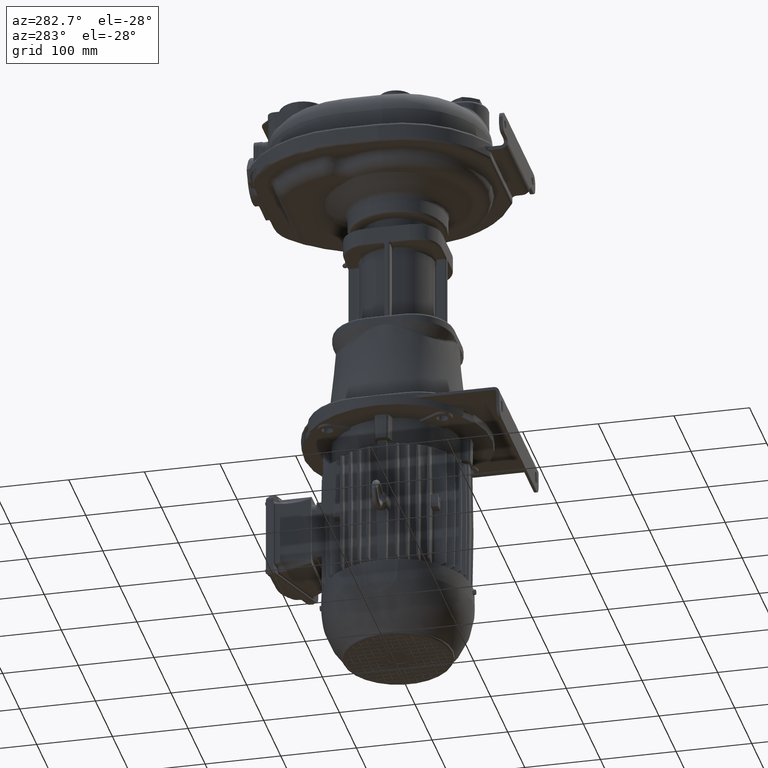
[diagram: clean part render]
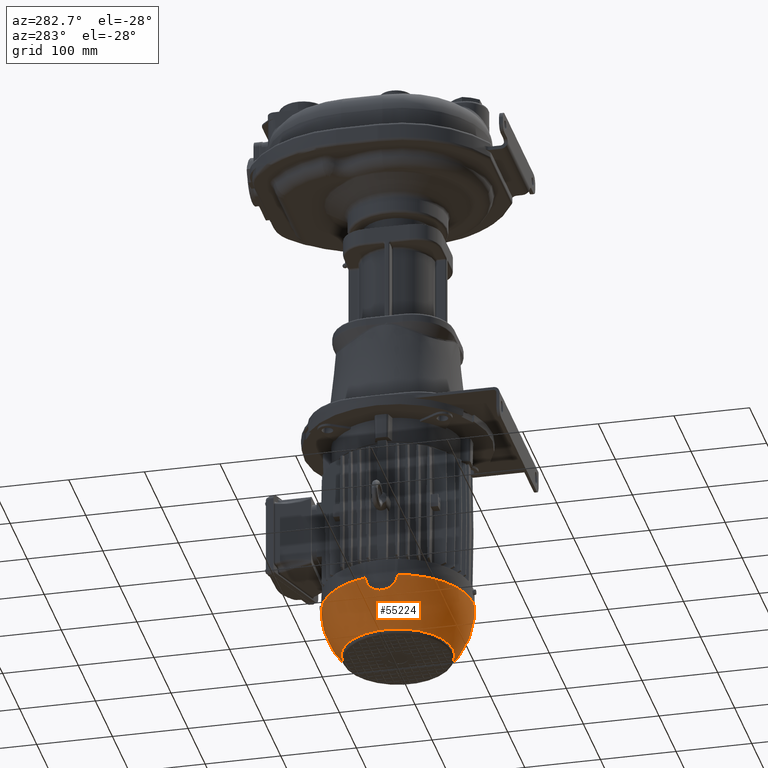
[diagram: same view with one face highlighted and labeled with its STEP entity id]
A machine part, auxiliary view. The second image highlights one B-rep face of the part: STEP entity #55224.
In plain terms, the highlighted spherical surface has radius 99.0542 mm.
Its self-contained STEP definition (entity closure, byte-faithful):
#2331=CARTESIAN_POINT('',(9.905046540133E1,1.696256305917E-11,
-6.294644003162E2));
#2332=CARTESIAN_POINT('',(9.905046540130E1,-6.306420004001E-1,
-6.294644003191E2));
#2333=CARTESIAN_POINT('',(9.903841937733E1,-1.891925999810E0,
-6.294644003232E2));
#2334=CARTESIAN_POINT('',(9.898421886221E1,-3.783161774997E0,
-6.294644003110E2));
#2335=CARTESIAN_POINT('',(9.889390664017E1,-5.673017382408E0,
-6.294644003212E2));
#2336=CARTESIAN_POINT('',(9.876751565950E1,-7.560803345271E0,
-6.294644003186E2));
#2337=CARTESIAN_POINT('',(9.860509203085E1,-9.445830951163E0,
-6.294644003228E2));
#2338=CARTESIAN_POINT('',(9.840669500960E1,-1.132741250479E1,
-6.294644003249E2));
#2339=CARTESIAN_POINT('',(9.817239697601E1,-1.320486155731E1,
-6.294644003277E2));
#2340=CARTESIAN_POINT('',(9.790228340663E1,-1.507749317772E1,
-6.294644003294E2));
#2341=CARTESIAN_POINT('',(9.759645284658E1,-1.694462417757E1,
-6.294644003302E2));
#2342=CARTESIAN_POINT('',(9.725501686801E1,-1.880557339628E1,
-6.294644003303E2));
#2343=CARTESIAN_POINT('',(9.687810003540E1,-2.065966191125E1,
-6.294644003302E2));
#2344=CARTESIAN_POINT('',(9.646583985694E1,-2.250621330770E1,
-6.294644003298E2));
#2345=CARTESIAN_POINT('',(9.601838673406E1,-2.434455392376E1,
-6.294644003292E2));
#2346=CARTESIAN_POINT('',(9.553590390820E1,-2.617401308938E1,
-6.294644003281E2));
#2347=CARTESIAN_POINT('',(9.501856739992E1,-2.799392337689E1,
-6.294644003262E2));
#2348=CARTESIAN_POINT('',(9.446656594551E1,-2.980362084099E1,
-6.294644003223E2));
#2349=CARTESIAN_POINT('',(9.388010092773E1,-3.160244526265E1,
-6.294644003171E2));
#2350=CARTESIAN_POINT('',(9.325938630241E1,-3.338974038964E1,
-6.294644003111E2));
#2351=CARTESIAN_POINT('',(9.260464852044E1,-3.516485417581E1,
-6.294644003048E2));
#2352=CARTESIAN_POINT('',(9.191612644514E1,-3.692713901905E1,
-6.294644002984E2));
#2353=CARTESIAN_POINT('',(9.119407126510E1,-3.867595199757E1,
-6.294644002921E2));
#2354=CARTESIAN_POINT('',(9.043874640258E1,-4.041065510435E1,
-6.294644002856E2));
#2355=CARTESIAN_POINT('',(8.965042741737E1,-4.213061548006E1,
-6.294644002779E2));
#2356=CARTESIAN_POINT('',(8.882940190629E1,-4.383520564379E1,
-6.294644002683E2));
#2357=CARTESIAN_POINT('',(8.797596939821E1,-4.552380372207E1,
-6.294644002583E2));
#2358=CARTESIAN_POINT('',(8.709044124483E1,-4.719579367568E1,
-6.294644002490E2));
#2359=CARTESIAN_POINT('',(8.617314050707E1,-4.885056552443E1,
-6.294644002413E2));
#2360=CARTESIAN_POINT('',(8.522440183725E1,-5.048751556970E1,
-6.294644002360E2));
#2361=CARTESIAN_POINT('',(8.424457135695E1,-5.210604661463E1,
-6.294644002333E2));
#2362=CARTESIAN_POINT('',(8.323400653077E1,-5.370556818206E1,
-6.294644002330E2));
#2363=CARTESIAN_POINT('',(8.219307603588E1,-5.528549672998E1,
-6.294644002331E2));
#2364=CARTESIAN_POINT('',(8.112215962769E1,-5.684525586412E1,
-6.294644002350E2));
#2365=CARTESIAN_POINT('',(8.002164800071E1,-5.838427654904E1,
-6.294644002419E2));
#2366=CARTESIAN_POINT('',(7.889194264740E1,-5.990199731393E1,
-6.294644002558E2));
#2367=CARTESIAN_POINT('',(7.773345570970E1,-6.139786446014E1,
-6.294644002804E2));
#2368=CARTESIAN_POINT('',(7.654660982935E1,-6.287133226207E1,
-6.294644003171E2));
#2369=CARTESIAN_POINT('',(7.533183799464E1,-6.432186316529E1,
-6.294644003595E2));
#2370=CARTESIAN_POINT('',(7.408958338096E1,-6.574892798425E1,
-6.294644003966E2));
#2371=CARTESIAN_POINT('',(7.282029919348E1,-6.715200609037E1,
-6.294644004266E2));
#2372=CARTESIAN_POINT('',(7.152444849598E1,-6.853058560884E1,
-6.294644004517E2));
#2373=CARTESIAN_POINT('',(7.020250404412E1,-6.988416360265E1,
-6.294644004743E2));
#2374=CARTESIAN_POINT('',(6.885494811293E1,-7.121224625607E1,
-6.294644004965E2));
#2375=CARTESIAN_POINT('',(6.748227232268E1,-7.251434905310E1,
-6.294644005196E2));
#2376=CARTESIAN_POINT('',(6.608497745613E1,-7.378999695769E1,
-6.294644005424E2));
#2377=CARTESIAN_POINT('',(6.466357327565E1,-7.503872458659E1,
-6.294644005615E2));
#2378=CARTESIAN_POINT('',(6.321857835003E1,-7.626007636864E1,
-6.294644005649E2));
#2379=CARTESIAN_POINT('',(6.175051983748E1,-7.745360673449E1,
-6.294644005503E2));
#2380=CARTESIAN_POINT('',(6.025993332364E1,-7.861888025311E1,
-6.294644005241E2));
#2381=CARTESIAN_POINT('',(5.874736260800E1,-7.975547180655E1,
-6.294644004910E2));
#2382=CARTESIAN_POINT('',(5.721335951034E1,-8.086296674055E1,
-6.294644004555E2));
#2383=CARTESIAN_POINT('',(5.565848367063E1,-8.194096101519E1,
-6.294644004192E2));
#2384=CARTESIAN_POINT('',(5.408330234249E1,-8.298906135394E1,
-6.294644003787E2));
#2385=CARTESIAN_POINT('',(5.248839018831E1,-8.400688538580E1,
-6.294644003181E2));
#2386=CARTESIAN_POINT('',(5.087432906888E1,-8.499406178534E1,
-6.294644002056E2));
#2387=CARTESIAN_POINT('',(4.924170782984E1,-8.595023040834E1,
-6.294644000523E2));
#2388=CARTESIAN_POINT('',(4.759112208985E1,-8.687504242177E1,
-6.294643998705E2));
#2389=CARTESIAN_POINT('',(4.592317401732E1,-8.776816043471E1,
-6.294643996749E2));
#2390=CARTESIAN_POINT('',(4.423847212236E1,-8.862925861389E1,
-6.294643994798E2));
#2391=CARTESIAN_POINT('',(4.253763102618E1,-8.945802281223E1,
-6.294643992895E2));
#2392=CARTESIAN_POINT('',(4.082127116176E1,-9.025415070247E1,
-6.294643990947E2));
#2393=CARTESIAN_POINT('',(3.909001907745E1,-9.101735169397E1,
-6.294643988085E2));
#2394=CARTESIAN_POINT('',(3.734450489265E1,-9.174734792860E1,
-6.294643983781E2));
#2395=CARTESIAN_POINT('',(3.558537029611E1,-9.244387120295E1,
-6.294643978453E2));
#2396=CARTESIAN_POINT('',(3.381324330332E1,-9.310667267021E1,
-6.294643972671E2));
#2397=CARTESIAN_POINT('',(3.202880236261E1,-9.373549821483E1,
-6.294643967272E2));
#2398=CARTESIAN_POINT('',(3.023264712697E1,-9.433014006159E1,
-6.294643963497E2));
#2399=CARTESIAN_POINT('',(2.842542444998E1,-9.489036840277E1,
-6.294643961372E2));
#2400=CARTESIAN_POINT('',(2.660830281073E1,-9.541587321546E1,
-6.294643958879E2));
#2401=CARTESIAN_POINT('',(2.477931335041E1,-9.590708460441E1,
-6.294643975068E2));
#2402=CARTESIAN_POINT('',(2.294836732737E1,-9.636162231676E1,
-6.294643947300E2));
#2403=CARTESIAN_POINT('',(2.109182160937E1,-9.678504793628E1,
-6.294644032428E2));
#2404=CARTESIAN_POINT('',(1.925026651343E1,-9.716752143377E1,
-6.294643655569E2));
#2405=CARTESIAN_POINT('',(1.755746439634E1,-9.748637840981E1,
-6.294644038523E2));
#2406=CARTESIAN_POINT('',(1.607656234470E1,-9.774044688330E1,
-6.294643876142E2));
#2407=CARTESIAN_POINT('',(1.477048186273E1,-9.794559440822E1,
-6.294643625922E2));
#2408=CARTESIAN_POINT('',(1.361931131012E1,-9.811168114552E1,
-6.294644530792E2));
#2409=CARTESIAN_POINT('',(1.261041083537E1,-9.824598449472E1,
-6.294644185746E2));
#2410=CARTESIAN_POINT('',(1.172581760757E1,-9.835511908334E1,
-6.294644134085E2));
#2411=CARTESIAN_POINT('',(1.095559310519E1,-9.844360475970E1,
-6.294644189021E2));
#2412=CARTESIAN_POINT('',(1.028101900318E1,-9.851614479228E1,
-6.294644629472E2));
#2413=CARTESIAN_POINT('',(9.680846350193E0,-9.857678800536E1,
-6.294644923881E2));
#2414=CARTESIAN_POINT('',(9.148755611871E0,-9.862747392561E1,
-6.294644355985E2));
#2415=CARTESIAN_POINT('',(8.681078818873E0,-9.866963603358E1,
-6.294642653105E2));
#2416=CARTESIAN_POINT('',(8.276396311462E0,-9.870432908367E1,
-6.294640383231E2));
#2417=CARTESIAN_POINT('',(7.916189551146E0,-9.873382977146E1,
-6.294641137934E2));
#2418=CARTESIAN_POINT('',(7.583106236055E0,-9.875993649281E1,
-6.294645390167E2));
#2419=CARTESIAN_POINT('',(7.280253992832E0,-9.878268808018E1,
-6.294646528428E2));
#2420=CARTESIAN_POINT('',(7.010606999600E0,-9.880216752329E1,
-6.294641732898E2));
#2421=CARTESIAN_POINT('',(6.764842200303E0,-9.881928806711E1,
-6.294638098642E2));
#2422=CARTESIAN_POINT('',(6.530633950195E0,-9.883503309208E1,
-6.294640676648E2));
#2423=CARTESIAN_POINT('',(6.306673785719E0,-9.884956224017E1,
-6.294645700993E2));
#2424=CARTESIAN_POINT('',(6.099663406069E0,-9.886253840570E1,
-6.294645298283E2));
#2425=CARTESIAN_POINT('',(5.911984642499E0,-9.887393465245E1,
-6.294638914168E2));
#2426=CARTESIAN_POINT('',(5.734113174161E0,-9.888441097188E1,
-6.294634241817E2));
#2427=CARTESIAN_POINT('',(5.556968336707E0,-9.889452339118E1,
-6.294636594420E2));
#2428=CARTESIAN_POINT('',(5.375566708900E0,-9.890454639684E1,
-6.294644330930E2));
#2429=CARTESIAN_POINT('',(5.186712159042E0,-9.891463151031E1,
-6.294649623414E2));
#2430=CARTESIAN_POINT('',(4.990443024290E0,-9.892473050240E1,
-6.294647097431E2));
#2431=CARTESIAN_POINT('',(4.803981828528E0,-9.893395159751E1,
-6.294643366708E2));
#2432=CARTESIAN_POINT('',(4.640014905395E0,-9.894176804406E1,
-6.294642197779E2));
#2433=CARTESIAN_POINT('',(4.483205702665E0,-9.894899856539E1,
-6.294643055930E2));
#2434=CARTESIAN_POINT('',(4.317435720538E0,-9.895637197771E1,
-6.294646874803E2));
#2435=CARTESIAN_POINT('',(4.147470983543E0,-9.896363761821E1,
-6.294650167868E2));
#2436=CARTESIAN_POINT('',(3.983065234320E0,-9.897038896306E1,
-6.294647341665E2));
#2437=CARTESIAN_POINT('',(3.827712231108E0,-9.897651676209E1,
-6.294643413185E2));
#2438=CARTESIAN_POINT('',(3.684469536170E0,-9.898194632817E1,
-6.294643908840E2));
#2439=CARTESIAN_POINT('',(3.551671167634E0,-9.898679626570E1,
-6.294644119705E2));
#2440=CARTESIAN_POINT('',(3.427089736914E0,-9.899118440324E1,
-6.294643656238E2));
#2441=CARTESIAN_POINT('',(3.313734934776E0,-9.899503847811E1,
-6.294643771429E2));
#2442=CARTESIAN_POINT('',(3.215055890976E0,-9.899828666110E1,
-6.294644951755E2));
#2443=CARTESIAN_POINT('',(3.128407841223E0,-9.900105964156E1,
-6.294645089298E2));
#2444=CARTESIAN_POINT('',(3.050295183236E0,-9.900349720159E1,
-6.294642759556E2));
#2445=CARTESIAN_POINT('',(2.979358245230E0,-9.900565747303E1,
-6.294640629492E2));
#2446=CARTESIAN_POINT('',(2.915894394534E0,-9.900754414612E1,
-6.294641910184E2));
#2447=CARTESIAN_POINT('',(2.860103216551E0,-9.900916505701E1,
-6.294647761668E2));
#2448=CARTESIAN_POINT('',(2.810724780306E0,-9.901057356758E1,
-6.294653119103E2));
#2449=CARTESIAN_POINT('',(2.765731625353E0,-9.901184142165E1,
-6.294651580374E2));
#2450=CARTESIAN_POINT('',(2.723258882348E0,-9.901302051849E1,
-6.294649302580E2));
#2451=CARTESIAN_POINT('',(2.681413740983E0,-9.901419419017E1,
-6.294612952142E2));
#2452=CARTESIAN_POINT('',(2.641406391415E0,-9.901530235086E1,
-6.294574970250E2));
#2453=CARTESIAN_POINT('',(2.604096269098E0,-9.901632025262E1,
-6.294540710753E2));
#2454=CARTESIAN_POINT('',(2.568309601070E0,-9.901727540783E1,
-6.294517146969E2));
#2455=CARTESIAN_POINT('',(2.533032290874E0,-9.901819222156E1,
-6.294507922272E2));
#2456=CARTESIAN_POINT('',(2.496652312925E0,-9.901911610745E1,
-6.294508278677E2));
#2457=CARTESIAN_POINT('',(2.457617874585E0,-9.902008668102E1,
-6.294515601166E2));
#2458=CARTESIAN_POINT('',(2.414294035544E0,-9.902114481506E1,
-6.294525205556E2));
#2459=CARTESIAN_POINT('',(2.365441219372E0,-9.902231623501E1,
-6.294535060933E2));
#2460=CARTESIAN_POINT('',(2.310097367232E0,-9.902361104914E1,
-6.294550101895E2));
#2461=CARTESIAN_POINT('',(2.247463261394E0,-9.902503087724E1,
-6.294576270764E2));
#2462=CARTESIAN_POINT('',(2.179907521871E0,-9.902650380011E1,
-6.294620079740E2));
#2463=CARTESIAN_POINT('',(2.108909214004E0,-9.902799607974E1,
-6.294672309894E2));
#2464=CARTESIAN_POINT('',(2.036025474447E0,-9.902951142695E1,
-6.294685001495E2));
#2465=CARTESIAN_POINT('',(1.954570902743E0,-9.903117586588E1,
-6.294661893921E2));
#2466=CARTESIAN_POINT('',(1.861843455652E0,-9.903301495091E1,
-6.294605411037E2));
#2467=CARTESIAN_POINT('',(1.758520227236E0,-9.903498078083E1,
-6.294522742567E2));
#2468=CARTESIAN_POINT('',(1.642464595206E0,-9.903705384275E1,
-6.294431991189E2));
#2469=CARTESIAN_POINT('',(1.532478223822E0,-9.903886867083E1,
-6.294369911456E2));
#2470=CARTESIAN_POINT('',(1.422392476719E0,-9.904053338581E1,
-6.294345682175E2));
#2471=CARTESIAN_POINT('',(1.310846164934E0,-9.904204703004E1,
-6.294373378229E2));
#2472=CARTESIAN_POINT('',(1.208786908375E0,-9.904327162203E1,
-6.294452414085E2));
#2473=CARTESIAN_POINT('',(1.118160873445E0,-9.904423550479E1,
-6.294566001479E2));
#2474=CARTESIAN_POINT('',(1.023644090544E0,-9.904511970824E1,
-6.294727865843E2));
#2475=CARTESIAN_POINT('',(9.159493550482E-1,-9.904602725398E1,
-6.294901316239E2));
#2476=CARTESIAN_POINT('',(7.946728482030E-1,-9.904693504718E1,
-6.295070164330E2));
#2477=CARTESIAN_POINT('',(6.578141625685E-1,-9.904781666232E1,
-6.295209842770E2));
#2478=CARTESIAN_POINT('',(5.368988717431E-1,-9.904848169598E1,
-6.295273746106E2));
#2479=CARTESIAN_POINT('',(4.303566555815E-1,-9.904899401997E1,
-6.295278776853E2));
#2480=CARTESIAN_POINT('',(3.320804871931E-1,-9.904940875539E1,
-6.295234105452E2));
#2481=CARTESIAN_POINT('',(2.410456700666E-1,-9.904974764817E1,
-6.295145299641E2));
#2482=CARTESIAN_POINT('',(1.556325442346E-1,-9.905002976507E1,
-6.295016305040E2));
#2483=CARTESIAN_POINT('',(7.523331405035E-2,-9.905026739740E1,
-6.294849922275E2));
#2484=CARTESIAN_POINT('',(2.456624634777E-2,-9.905040211255E1,
-6.294716524895E2));
#2485=CARTESIAN_POINT('',(3.076966677829E-12,-9.905046540131E1,
-6.294644003162E2));
#2487=CARTESIAN_POINT('',(1.758759029616E-12,9.905046540134E1,
-6.294644003162E2));
#2488=CARTESIAN_POINT('',(2.445972901720E-2,9.905040239022E1,
-6.294716206756E2));
#2489=CARTESIAN_POINT('',(7.489888094634E-2,9.905026830009E1,
-6.294849073060E2));
#2490=CARTESIAN_POINT('',(1.549211736612E-1,9.905003193555E1,
-6.295014960255E2));
#2491=CARTESIAN_POINT('',(2.398935600020E-1,9.904975163186E1,
-6.295143804003E2));
#2492=CARTESIAN_POINT('',(3.304703117397E-1,9.904941502558E1,
-6.295232855423E2));
#2493=CARTESIAN_POINT('',(4.280778203413E-1,9.904900420749E1,
-6.295278263214E2));
#2494=CARTESIAN_POINT('',(5.341548408261E-1,9.904849556400E1,
-6.295274381163E2));
#2495=CARTESIAN_POINT('',(6.534674569446E-1,9.904784201155E1,
-6.295213049847E2));
#2496=CARTESIAN_POINT('',(7.903329486311E-1,9.904696588503E1,
-6.295075687505E2));
#2497=CARTESIAN_POINT('',(9.147342566332E-1,9.904603746475E1,
-6.294903457965E2));
#2498=CARTESIAN_POINT('',(1.022909403795E0,9.904512650088E1,-6.294728777503E2));
#2499=CARTESIAN_POINT('',(1.117558493938E0,9.904424077454E1,-6.294567524416E2));
#2500=CARTESIAN_POINT('',(1.206792308640E0,9.904329391529E1,-6.294454341134E2));
#2501=CARTESIAN_POINT('',(1.307989408846E0,9.904208267811E1,-6.294375158544E2));
#2502=CARTESIAN_POINT('',(1.417898598442E0,9.904059769455E1,-6.294345729208E2));
#2503=CARTESIAN_POINT('',(1.529400792568E0,9.903891818183E1,-6.294368459520E2));
#2504=CARTESIAN_POINT('',(1.639329609724E0,9.903710640491E1,-6.294430037864E2));
#2505=CARTESIAN_POINT('',(1.750398960090E0,9.903512835399E1,-6.294516111401E2));
#2506=CARTESIAN_POINT('',(1.848052741302E0,9.903328051714E1,-6.294594740622E2));
#2507=CARTESIAN_POINT('',(1.933980569077E0,9.903158817065E1,-6.294650827552E2));
#2508=CARTESIAN_POINT('',(2.011130067495E0,9.903002333829E1,-6.294680106342E2));
#2509=CARTESIAN_POINT('',(2.078489837776E0,9.902862863101E1,-6.294682747627E2));
#2510=CARTESIAN_POINT('',(2.144812778979E0,9.902724856331E1,-6.294644595446E2));
#2511=CARTESIAN_POINT('',(2.218734074997E0,9.902566711700E1,-6.294593509014E2));
#2512=CARTESIAN_POINT('',(2.304733304297E0,9.902374426230E1,-6.294550389780E2));
#2513=CARTESIAN_POINT('',(2.401943316521E0,9.902146099327E1,-6.294522443941E2));
#2514=CARTESIAN_POINT('',(2.502472809594E0,9.901897867087E1,-6.294513746291E2));
#2515=CARTESIAN_POINT('',(2.601373452162E0,9.901642243578E1,-6.294522613323E2));
#2516=CARTESIAN_POINT('',(2.706571042133E0,9.901358504943E1,-6.294546906811E2));
#2517=CARTESIAN_POINT('',(2.825104833647E0,9.901024841837E1,-6.294584100645E2));
#2518=CARTESIAN_POINT('',(2.961814021056E0,9.900621636917E1,-6.294634107020E2));
#2519=CARTESIAN_POINT('',(3.104777697328E0,9.900181158724E1,-6.294660166802E2));
#2520=CARTESIAN_POINT('',(3.234630751123E0,9.899766238888E1,-6.294640729614E2));
#2521=CARTESIAN_POINT('',(3.344612896971E0,9.899402040892E1,-6.294619342774E2));
#2522=CARTESIAN_POINT('',(3.445778338066E0,9.899056353043E1,-6.294603741731E2));
#2523=CARTESIAN_POINT('',(3.549628747423E0,9.898689961468E1,-6.294600205822E2));
#2524=CARTESIAN_POINT('',(3.665138368003E0,9.898269183766E1,-6.294605496091E2));
#2525=CARTESIAN_POINT('',(3.799447960977E0,9.897762496244E1,-6.294617655447E2));
#2526=CARTESIAN_POINT('',(3.949694843146E0,9.897173497031E1,-6.294635664451E2));
#2527=CARTESIAN_POINT('',(4.108720491082E0,9.896524515719E1,-6.294652073741E2));
#2528=CARTESIAN_POINT('',(4.254839212307E0,9.895906431533E1,-6.294649317135E2));
#2529=CARTESIAN_POINT('',(4.385548412378E0,9.895336432240E1,-6.294636065771E2));
#2530=CARTESIAN_POINT('',(4.509072791384E0,9.894781977076E1,-6.294626194322E2));
#2531=CARTESIAN_POINT('',(4.633093202907E0,9.894209367665E1,-6.294624734880E2));
#2532=CARTESIAN_POINT('',(4.770481205608E0,9.893557179322E1,-6.294629170351E2));
#2533=CARTESIAN_POINT('',(4.936851966474E0,9.892741684138E1,-6.294638779809E2));
#2534=CARTESIAN_POINT('',(5.121568436218E0,9.891802123430E1,-6.294648430471E2));
#2535=CARTESIAN_POINT('',(5.302152099125E0,9.890850161795E1,-6.294647204213E2));
#2536=CARTESIAN_POINT('',(5.474880378505E0,9.889909470149E1,-6.294639027733E2));
#2537=CARTESIAN_POINT('',(5.643898320271E0,9.888959649070E1,-6.294633937305E2));
#2538=CARTESIAN_POINT('',(5.812857923718E0,9.887980833196E1,-6.294636531746E2));
#2539=CARTESIAN_POINT('',(5.990122860556E0,9.886923105029E1,-6.294642243090E2));
#2540=CARTESIAN_POINT('',(6.184684957427E0,9.885726151933E1,-6.294645106680E2));
#2541=CARTESIAN_POINT('',(6.398678885419E0,9.884365672129E1,-6.294642342660E2));
#2542=CARTESIAN_POINT('',(6.628609944186E0,9.882851742389E1,-6.294638779364E2));
#2543=CARTESIAN_POINT('',(6.872680019122E0,9.881185666029E1,-6.294640367923E2));
#2544=CARTESIAN_POINT('',(7.137723832439E0,9.879308380931E1,-6.294644832545E2));
#2545=CARTESIAN_POINT('',(7.431583929481E0,9.877144282740E1,-6.294646142056E2));
#2546=CARTESIAN_POINT('',(7.754508069483E0,9.874664587507E1,-6.294642387739E2));
#2547=CARTESIAN_POINT('',(8.099636912661E0,9.871896367937E1,-6.294641008888E2));
#2548=CARTESIAN_POINT('',(8.475267619528E0,9.868747889607E1,-6.294641622562E2));
#2549=CARTESIAN_POINT('',(8.906000093554E0,9.864963012783E1,-6.294644019018E2));
#2550=CARTESIAN_POINT('',(9.399434827061E0,9.860393908657E1,-6.294644941836E2));
#2551=CARTESIAN_POINT('',(9.951735885240E0,9.854984620707E1,-6.294644892595E2));
#2552=CARTESIAN_POINT('',(1.057118063084E1,9.848547817720E1,-6.294644350859E2));
#2553=CARTESIAN_POINT('',(1.126965901557E1,9.840821513976E1,-6.294644397973E2));
#2554=CARTESIAN_POINT('',(1.206985619948E1,9.831358159489E1,-6.294644410618E2));
#2555=CARTESIAN_POINT('',(1.298482220513E1,9.819730543936E1,-6.294644376700E2));
#2556=CARTESIAN_POINT('',(1.402743234683E1,9.805430653255E1,-6.294643575583E2));
#2557=CARTESIAN_POINT('',(1.521634238207E1,9.787747403565E1,-6.294643761020E2));
#2558=CARTESIAN_POINT('',(1.655844426068E1,9.766018382282E1,-6.294643997849E2));
#2559=CARTESIAN_POINT('',(1.809113952679E1,9.738907601181E1,-6.294644090450E2));
#2560=CARTESIAN_POINT('',(1.982759798625E1,9.705152902390E1,-6.294644065613E2));
#2561=CARTESIAN_POINT('',(2.167040264512E1,9.665705838185E1,-6.294644022648E2));
#2562=CARTESIAN_POINT('',(2.350800357507E1,9.622655179235E1,-6.294644050993E2));
#2563=CARTESIAN_POINT('',(2.533191559782E1,9.576257471969E1,-6.294644046429E2));
#2564=CARTESIAN_POINT('',(2.714886949511E1,9.526340881935E1,-6.294644041807E2));
#2565=CARTESIAN_POINT('',(2.895540403303E1,9.472994130686E1,-6.294644032830E2));
#2566=CARTESIAN_POINT('',(3.075155054116E1,9.416219896662E1,-6.294644026890E2));
#2567=CARTESIAN_POINT('',(3.253659940924E1,9.356039321306E1,-6.294644023308E2));
#2568=CARTESIAN_POINT('',(3.430985684433E1,9.292476103463E1,-6.294644021179E2));
#2569=CARTESIAN_POINT('',(3.607071910835E1,9.225551864124E1,-6.294644019696E2));
#2570=CARTESIAN_POINT('',(3.781853152525E1,9.155291456069E1,-6.294644018183E2));
#2571=CARTESIAN_POINT('',(3.955266889248E1,9.081720034277E1,-6.294644016223E2));
#2572=CARTESIAN_POINT('',(4.127250179084E1,9.004864290910E1,-6.294644013420E2));
#2573=CARTESIAN_POINT('',(4.297740890511E1,8.924751995755E1,-6.294644010722E2));
#2574=CARTESIAN_POINT('',(4.466677351209E1,8.841412126472E1,-6.294644008580E2));
#2575=CARTESIAN_POINT('',(4.633998469123E1,8.754874821566E1,-6.294644006983E2));
#2576=CARTESIAN_POINT('',(4.799643733676E1,8.665171376544E1,-6.294644005785E2));
#2577=CARTESIAN_POINT('',(4.963553240220E1,8.572334232188E1,-6.294644004803E2));
#2578=CARTESIAN_POINT('',(5.125667712227E1,8.476396962289E1,-6.294644003856E2));
#2579=CARTESIAN_POINT('',(5.285928521578E1,8.377394262244E1,-6.294644002748E2));
#2580=CARTESIAN_POINT('',(5.444277711132E1,8.275361935661E1,-6.294644001699E2));
#2581=CARTESIAN_POINT('',(5.600658015490E1,8.170336881488E1,-6.294644000942E2));
#2582=CARTESIAN_POINT('',(5.755012880838E1,8.062357081255E1,-6.294644000491E2));
#2583=CARTESIAN_POINT('',(5.907286485543E1,7.951461585288E1,-6.294644000307E2));
#2584=CARTESIAN_POINT('',(6.057423760936E1,7.837690498167E1,-6.294644000311E2));
#2585=CARTESIAN_POINT('',(6.205370411102E1,7.721084964270E1,-6.294644000413E2));
#2586=CARTESIAN_POINT('',(6.351072932041E1,7.601687153266E1,-6.294644000539E2));
#2587=CARTESIAN_POINT('',(6.494478631216E1,7.479540244749E1,-6.294644000595E2));
#2588=CARTESIAN_POINT('',(6.635535647195E1,7.354688412087E1,-6.294644000629E2));
#2589=CARTESIAN_POINT('',(6.774192967562E1,7.227176807175E1,-6.294644000717E2));
#2590=CARTESIAN_POINT('',(6.910400447861E1,7.097051543696E1,-6.294644000869E2));
#2591=CARTESIAN_POINT('',(7.044108829606E1,6.964359680544E1,-6.294644001074E2));
#2592=CARTESIAN_POINT('',(7.175269758074E1,6.829149204827E1,-6.294644001308E2));
#2593=CARTESIAN_POINT('',(7.303835799823E1,6.691469014479E1,-6.294644001541E2));
#2594=CARTESIAN_POINT('',(7.429760459823E1,6.551368900606E1,-6.294644001740E2));
#2595=CARTESIAN_POINT('',(7.552998198330E1,6.408899529400E1,-6.294644001877E2));
#2596=CARTESIAN_POINT('',(7.673504447130E1,6.264112424088E1,-6.294644002002E2));
#2597=CARTESIAN_POINT('',(7.791235626339E1,6.117059945463E1,-6.294644002135E2));
#2598=CARTESIAN_POINT('',(7.906149158766E1,5.967795274684E1,-6.294644002283E2));
#2599=CARTESIAN_POINT('',(8.018203486899E1,5.816372392106E1,-6.294644002438E2));
#2600=CARTESIAN_POINT('',(8.127358087413E1,5.662846058271E1,-6.294644002594E2));
#2601=CARTESIAN_POINT('',(8.233573484881E1,5.507271795500E1,-6.294644002734E2));
#2602=CARTESIAN_POINT('',(8.336811267459E1,5.349705865843E1,-6.294644002841E2));
#2603=CARTESIAN_POINT('',(8.437034099802E1,5.190205252098E1,-6.294644002916E2));
#2604=CARTESIAN_POINT('',(8.534205737069E1,5.028827636477E1,-6.294644002984E2));
#2605=CARTESIAN_POINT('',(8.628291037808E1,4.865631380077E1,-6.294644003053E2));
#2606=CARTESIAN_POINT('',(8.719255976710E1,4.700675501710E1,-6.294644003126E2));
#2607=CARTESIAN_POINT('',(8.807067656934E1,4.534019656533E1,-6.294644003198E2));
#2608=CARTESIAN_POINT('',(8.891694321995E1,4.365724114477E1,-6.294644003263E2));
#2609=CARTESIAN_POINT('',(8.973105367244E1,4.195849738466E1,-6.294644003316E2));
#2610=CARTESIAN_POINT('',(9.051271350941E1,4.024457962387E1,-6.294644003343E2));
#2611=CARTESIAN_POINT('',(9.126164004895E1,3.851610768902E1,-6.294644003358E2));
#2612=CARTESIAN_POINT('',(9.197756244698E1,3.677370666993E1,-6.294644003370E2));
#2613=CARTESIAN_POINT('',(9.266022179509E1,3.501800669394E1,-6.294644003382E2));
#2614=CARTESIAN_POINT('',(9.330937121424E1,3.324964269783E1,-6.294644003396E2));
#2615=CARTESIAN_POINT('',(9.392477594403E1,3.146925419820E1,-6.294644003408E2));
#2616=CARTESIAN_POINT('',(9.450621342760E1,2.967748506028E1,-6.294644003415E2));
#2617=CARTESIAN_POINT('',(9.505347339211E1,2.787498326499E1,-6.294644003412E2));
#2618=CARTESIAN_POINT('',(9.556635792490E1,2.606240067415E1,-6.294644003395E2));
#2619=CARTESIAN_POINT('',(9.604468154435E1,2.424039279752E1,-6.294644003374E2));
#2620=CARTESIAN_POINT('',(9.648827126883E1,2.240961854852E1,-6.294644003353E2));
#2621=CARTESIAN_POINT('',(9.689696667640E1,2.057074001711E1,-6.294644003335E2));
#2622=CARTESIAN_POINT('',(9.727061996544E1,1.872442222025E1,-6.294644003319E2));
#2623=CARTESIAN_POINT('',(9.760909600720E1,1.687133286377E1,-6.294644003304E2));
#2624=CARTESIAN_POINT('',(9.791227239354E1,1.501214210845E1,-6.294644003287E2));
#2625=CARTESIAN_POINT('',(9.818003948381E1,1.314752231060E1,-6.294644003264E2));
#2626=CARTESIAN_POINT('',(9.841230044008E1,1.127814781099E1,-6.294644003234E2));
#2627=CARTESIAN_POINT('',(9.860897126882E1,9.404694639774E0,-6.294644003214E2));
#2628=CARTESIAN_POINT('',(9.876998084414E1,7.527840328711E0,-6.294644003175E2));
#2629=CARTESIAN_POINT('',(9.889527093845E1,5.648263624986E0,-6.294644003203E2));
#2630=CARTESIAN_POINT('',(9.898479624132E1,3.766644266521E0,-6.294644003108E2));
#2631=CARTESIAN_POINT('',(9.903852437615E1,1.883662743507E0,-6.294644003230E2));
#2632=CARTESIAN_POINT('',(9.905046540130E1,6.278875816431E-1,
-6.294644003190E2));
#2633=CARTESIAN_POINT('',(9.905046540133E1,1.696256305917E-11,
-6.294644003162E2));
#2635=CARTESIAN_POINT('',(-9.676932741771E1,2.113508853408E1,
-6.294644003162E2));
#2636=CARTESIAN_POINT('',(-9.663525300162E1,2.174896299429E1,
-6.294644003207E2));
#2637=CARTESIAN_POINT('',(-9.635542113220E1,2.297416025741E1,
-6.294644003275E2));
#2638=CARTESIAN_POINT('',(-9.590077623822E1,2.480363558103E1,
-6.294644003137E2));
#2639=CARTESIAN_POINT('',(-9.541139890568E1,2.662412777892E1,
-6.294644003277E2));
#2640=CARTESIAN_POINT('',(-9.488746637662E1,2.843497750573E1,
-6.294644003254E2));
#2641=CARTESIAN_POINT('',(-9.432916840595E1,3.023552891808E1,
-6.294644003318E2));
#2642=CARTESIAN_POINT('',(-9.373670719058E1,3.202512991666E1,
-6.294644003358E2));
#2643=CARTESIAN_POINT('',(-9.311029730372E1,3.380313235647E1,
-6.294644003413E2));
#2644=CARTESIAN_POINT('',(-9.245016561381E1,3.556889229466E1,
-6.294644003460E2));
#2645=CARTESIAN_POINT('',(-9.175655119761E1,3.732177023412E1,
-6.294644003498E2));
#2646=CARTESIAN_POINT('',(-9.102970526478E1,3.906113132622E1,
-6.294644003533E2));
#2647=CARTESIAN_POINT('',(-9.026989105661E1,4.078634562817E1,
-6.294644003570E2));
#2648=CARTESIAN_POINT('',(-8.947738375516E1,4.249678831861E1,
-6.294644003615E2));
#2649=CARTESIAN_POINT('',(-8.865247038352E1,4.419183992497E1,
-6.294644003669E2));
#2650=CARTESIAN_POINT('',(-8.779544970070E1,4.587088655014E1,
-6.294644003731E2));
#2651=CARTESIAN_POINT('',(-8.690663209453E1,4.753332009253E1,
-6.294644003796E2));
#2652=CARTESIAN_POINT('',(-8.598633946852E1,4.917853846780E1,
-6.294644003847E2));
#2653=CARTESIAN_POINT('',(-8.503490512550E1,5.080594582642E1,
-6.294644003878E2));
#2654=CARTESIAN_POINT('',(-8.405267364694E1,5.241495276937E1,
-6.294644003903E2));
#2655=CARTESIAN_POINT('',(-8.304000076812E1,5.400497656181E1,
-6.294644003932E2));
#2656=CARTESIAN_POINT('',(-8.199725324927E1,5.557544134398E1,
-6.294644003971E2));
#2657=CARTESIAN_POINT('',(-8.092480874282E1,5.712577833984E1,
-6.294644004024E2));
#2658=CARTESIAN_POINT('',(-7.982305565653E1,5.865542606306E1,
-6.294644004086E2));
#2659=CARTESIAN_POINT('',(-7.869239301291E1,6.016383052030E1,
-6.294644004147E2));
#2660=CARTESIAN_POINT('',(-7.753323030464E1,6.165044541199E1,
-6.294644004171E2));
#2661=CARTESIAN_POINT('',(-7.634598734627E1,6.311473233006E1,
-6.294644004159E2));
#2662=CARTESIAN_POINT('',(-7.513109412225E1,6.455616095284E1,
-6.294644004135E2));
#2663=CARTESIAN_POINT('',(-7.388899063081E1,6.597420923769E1,
-6.294644004114E2));
#2664=CARTESIAN_POINT('',(-7.262012672578E1,6.736836360868E1,
-6.294644004112E2));
#2665=CARTESIAN_POINT('',(-7.132496195155E1,6.873811914497E1,
-6.294644004131E2));
#2666=CARTESIAN_POINT('',(-7.000396537827E1,7.008297976177E1,
-6.294644004164E2));
#2667=CARTESIAN_POINT('',(-6.865761543519E1,7.140245838710E1,
-6.294644004177E2));
#2668=CARTESIAN_POINT('',(-6.728639972486E1,7.269607715038E1,
-6.294644004088E2));
#2669=CARTESIAN_POINT('',(-6.589081486516E1,7.396336753703E1,
-6.294644003929E2));
#2670=CARTESIAN_POINT('',(-6.447136629554E1,7.520387057215E1,
-6.294644003739E2));
#2671=CARTESIAN_POINT('',(-6.302856809755E1,7.641713698282E1,
-6.294644003553E2));
#2672=CARTESIAN_POINT('',(-6.156294281024E1,7.760272735960E1,
-6.294644003399E2));
#2673=CARTESIAN_POINT('',(-6.007502124010E1,7.876021231641E1,
-6.294644003286E2));
#2674=CARTESIAN_POINT('',(-5.856534226817E1,7.988917264657E1,
-6.294644003187E2));
#2675=CARTESIAN_POINT('',(-5.703445265588E1,8.098919947390E1,
-6.294644002986E2));
#2676=CARTESIAN_POINT('',(-5.548290684401E1,8.205989440279E1,
-6.294644002516E2));
#2677=CARTESIAN_POINT('',(-5.391126676320E1,8.310086965462E1,
-6.294644001878E2));
#2678=CARTESIAN_POINT('',(-5.232010160829E1,8.411174822341E1,
-6.294644001136E2));
#2679=CARTESIAN_POINT('',(-5.070998765348E1,8.509216399773E1,
-6.294644000375E2));
#2680=CARTESIAN_POINT('',(-4.908150803639E1,8.604176189868E1,
-6.294643999670E2));
#2681=CARTESIAN_POINT('',(-4.743525254244E1,8.696019801092E1,
-6.294643999032E2));
#2682=CARTESIAN_POINT('',(-4.577181739901E1,8.784713970290E1,
-6.294643998382E2));
#2683=CARTESIAN_POINT('',(-4.409180504515E1,8.870226575475E1,
-6.294643997242E2));
#2684=CARTESIAN_POINT('',(-4.239582396219E1,8.952526645082E1,
-6.294643995214E2));
#2685=CARTESIAN_POINT('',(-4.068448828414E1,9.031584377213E1,
-6.294643992514E2));
#2686=CARTESIAN_POINT('',(-3.895841808204E1,9.107371126127E1,
-6.294643989319E2));
#2687=CARTESIAN_POINT('',(-3.721823787913E1,9.179859475203E1,
-6.294643985876E2));
#2688=CARTESIAN_POINT('',(-3.546457863771E1,9.249023120458E1,
-6.294643982454E2));
#2689=CARTESIAN_POINT('',(-3.369807753702E1,9.314837011518E1,
-6.294643979094E2));
#2690=CARTESIAN_POINT('',(-3.191935455338E1,9.377277782331E1,
-6.294643975273E2));
#2691=CARTESIAN_POINT('',(-3.012914987364E1,9.436320250315E1,
-6.294643968987E2));
#2692=CARTESIAN_POINT('',(-2.832774709127E1,9.491952928038E1,
-6.294643955519E2));
#2693=CARTESIAN_POINT('',(-2.651698190232E1,9.544124083823E1,
-6.294643944451E2));
#2694=CARTESIAN_POINT('',(-2.469418290592E1,9.592901285098E1,
-6.294643907498E2));
#2695=CARTESIAN_POINT('',(-2.286785175265E1,9.638068233972E1,
-6.294643916602E2));
#2696=CARTESIAN_POINT('',(-2.102524722229E1,9.679948685922E1,
-6.294643817732E2));
#2697=CARTESIAN_POINT('',(-1.916995388173E1,9.718364047758E1,
-6.294643895690E2));
#2698=CARTESIAN_POINT('',(-1.742496773230E1,9.751044840335E1,
-6.294644099569E2));
#2699=CARTESIAN_POINT('',(-1.590023961610E1,9.776947412245E1,
-6.294643752318E2));
#2700=CARTESIAN_POINT('',(-1.455468101366E1,9.797806837620E1,
-6.294644344859E2));
#2701=CARTESIAN_POINT('',(-1.336045663129E1,9.814744473067E1,
-6.294643561564E2));
#2702=CARTESIAN_POINT('',(-1.230142175615E1,9.828532094630E1,
-6.294643367263E2));
#2703=CARTESIAN_POINT('',(-1.136616502056E1,9.839748196472E1,
-6.294643100131E2));
#2704=CARTESIAN_POINT('',(-1.054237334636E1,9.848885020588E1,
-6.294643057919E2));
#2705=CARTESIAN_POINT('',(-9.818378954506E0,9.856342330685E1,
-6.294643100495E2));
#2706=CARTESIAN_POINT('',(-9.183080722027E0,9.862446177352E1,
-6.294644480232E2));
#2707=CARTESIAN_POINT('',(-8.625411059511E0,9.867465265689E1,
-6.294645881964E2));
#2708=CARTESIAN_POINT('',(-8.140273870667E0,9.871575441996E1,
-6.294641888339E2));
#2709=CARTESIAN_POINT('',(-7.708097612795E0,9.875038242976E1,
-6.294640266890E2));
#2710=CARTESIAN_POINT('',(-7.310231585765E0,9.878058067323E1,
-6.294644484493E2));
#2711=CARTESIAN_POINT('',(-6.952619768213E0,9.880634586607E1,
-6.294643173925E2));
#2712=CARTESIAN_POINT('',(-6.632170625256E0,9.882834084446E1,
-6.294639902392E2));
#2713=CARTESIAN_POINT('',(-6.339256274133E0,9.884753434519E1,
-6.294642158329E2));
#2714=CARTESIAN_POINT('',(-6.073996179048E0,9.886415918311E1,
-6.294643616775E2));
#2715=CARTESIAN_POINT('',(-5.841147962036E0,9.887817105332E1,
-6.294638810561E2));
#2716=CARTESIAN_POINT('',(-5.627687628347E0,9.889054718E1,-6.294634940869E2));
#2717=CARTESIAN_POINT('',(-5.414901425111E0,9.890242576480E1,
-6.294638339402E2));
#2718=CARTESIAN_POINT('',(-5.199465500954E0,9.891398177325E1,
-6.294645651315E2));
#2719=CARTESIAN_POINT('',(-4.981123015124E0,9.892521466179E1,
-6.294648469898E2));
#2720=CARTESIAN_POINT('',(-4.772969228780E0,9.893546148644E1,
-6.294645638394E2));
#2721=CARTESIAN_POINT('',(-4.599175832391E0,9.894367768183E1,
-6.294639540120E2));
#2722=CARTESIAN_POINT('',(-4.449117878621E0,9.895053664142E1,
-6.294635386298E2));
#2723=CARTESIAN_POINT('',(-4.300788705874E0,9.895709594250E1,
-6.294636585490E2));
#2724=CARTESIAN_POINT('',(-4.146944164181E0,9.896365909571E1,
-6.294642526473E2));
#2725=CARTESIAN_POINT('',(-3.992438154337E0,9.897000968914E1,
-6.294645352296E2));
#2726=CARTESIAN_POINT('',(-3.841186830756E0,9.897599323767E1,
-6.294643313586E2));
#2727=CARTESIAN_POINT('',(-3.702732048105E0,9.898126096938E1,
-6.294644357251E2));
#2728=CARTESIAN_POINT('',(-3.581101892216E0,9.898572884403E1,
-6.294645540095E2));
#2729=CARTESIAN_POINT('',(-3.471973370891E0,9.898961396117E1,
-6.294644142090E2));
#2730=CARTESIAN_POINT('',(-3.372757217411E0,9.899304888436E1,
-6.294635150948E2));
#2731=CARTESIAN_POINT('',(-3.281853517865E0,9.899610493655E1,
-6.294631801989E2));
#2732=CARTESIAN_POINT('',(-3.197434544046E0,9.899885972110E1,
-6.294638751673E2));
#2733=CARTESIAN_POINT('',(-3.118994317824E0,9.900135262057E1,
-6.294647757820E2));
#2734=CARTESIAN_POINT('',(-3.046381805159E0,9.900361009707E1,
-6.294650173629E2));
#2735=CARTESIAN_POINT('',(-2.979407520885E0,9.900565247101E1,
-6.294643825315E2));
#2736=CARTESIAN_POINT('',(-2.918624693551E0,9.900746569731E1,
-6.294639172829E2));
#2737=CARTESIAN_POINT('',(-2.864541865594E0,9.900903980429E1,
-6.294643870438E2));
#2738=CARTESIAN_POINT('',(-2.817719342829E0,9.901037809409E1,
-6.294648735642E2));
#2739=CARTESIAN_POINT('',(-2.776490968032E0,9.901153848301E1,
-6.294652964650E2));
#2740=CARTESIAN_POINT('',(-2.739116964894E0,9.901257993503E1,
-6.294651982347E2));
#2741=CARTESIAN_POINT('',(-2.703938711747E0,9.901354871071E1,
-6.294649727262E2));
#2742=CARTESIAN_POINT('',(-2.668997004377E0,9.901451711705E1,
-6.294626397947E2));
#2743=CARTESIAN_POINT('',(-2.634663033134E0,9.901546610705E1,
-6.294592484030E2));
#2744=CARTESIAN_POINT('',(-2.602186080167E0,9.901635354079E1,
-6.294559467821E2));
#2745=CARTESIAN_POINT('',(-2.571522687546E0,9.901717842174E1,
-6.294532046604E2));
#2746=CARTESIAN_POINT('',(-2.541959464367E0,9.901795754382E1,
-6.294513891517E2));
#2747=CARTESIAN_POINT('',(-2.512844225280E0,9.901870686466E1,
-6.294506839070E2));
#2748=CARTESIAN_POINT('',(-2.482961013670E0,9.901946038721E1,
-6.294507369554E2));
#2749=CARTESIAN_POINT('',(-2.451157686180E0,9.902024750090E1,
-6.294513697928E2));
#2750=CARTESIAN_POINT('',(-2.416268395594E0,9.902109669452E1,
-6.294523717052E2));
#2751=CARTESIAN_POINT('',(-2.377137621910E0,9.902203587865E1,
-6.294533497625E2));
#2752=CARTESIAN_POINT('',(-2.333087610211E0,9.902307444499E1,
-6.294544822508E2));
#2753=CARTESIAN_POINT('',(-2.283315981819E0,9.902422051294E1,
-6.294562139093E2));
#2754=CARTESIAN_POINT('',(-2.227501974947E0,9.902546818671E1,
-6.294590314695E2));
#2755=CARTESIAN_POINT('',(-2.166753024243E0,9.902678208304E1,
-6.294630320226E2));
#2756=CARTESIAN_POINT('',(-2.101637108514E0,9.902814758387E1,
-6.294674610060E2));
#2757=CARTESIAN_POINT('',(-2.032842161225E0,9.902957572090E1,
-6.294684951835E2));
#2758=CARTESIAN_POINT('',(-1.957767171753E0,9.903111142125E1,
-6.294660795672E2));
#2759=CARTESIAN_POINT('',(-1.873081457336E0,9.903279599965E1,
-6.294611174698E2));
#2760=CARTESIAN_POINT('',(-1.776060462898E0,9.903465385837E1,
-6.294534873232E2));
#2761=CARTESIAN_POINT('',(-1.673111569952E0,9.903651734457E1,
-6.294452661084E2));
#2762=CARTESIAN_POINT('',(-1.579403977845E0,9.903810586200E1,
-6.294392190461E2));
#2763=CARTESIAN_POINT('',(-1.489937821668E0,9.903952361204E1,
-6.294356153639E2));
#2764=CARTESIAN_POINT('',(-1.398006327554E0,9.904087206649E1,
-6.294348562435E2));
#2765=CARTESIAN_POINT('',(-1.299120249668E0,9.904219360539E1,
-6.294380494661E2));
#2766=CARTESIAN_POINT('',(-1.196523731553E0,9.904340886586E1,
-6.294465843710E2));
#2767=CARTESIAN_POINT('',(-1.109006050735E0,9.904432285658E1,
-6.294582897969E2));
#2768=CARTESIAN_POINT('',(-1.015172670141E0,9.904519183888E1,
-6.294744900385E2));
#2769=CARTESIAN_POINT('',(-9.090207776139E-1,9.904607946945E1,
-6.294913835161E2));
#2770=CARTESIAN_POINT('',(-7.893790728465E-1,9.904696903090E1,
-6.295078930212E2));
#2771=CARTESIAN_POINT('',(-6.539869656001E-1,9.904783703279E1,
-6.295214937258E2));
#2772=CARTESIAN_POINT('',(-5.339749907106E-1,9.904849476551E1,
-6.295276547288E2));
#2773=CARTESIAN_POINT('',(-4.282090609049E-1,9.904900200885E1,
-6.295280021479E2));
#2774=CARTESIAN_POINT('',(-3.304902581019E-1,9.904941369609E1,
-6.295234358126E2));
#2775=CARTESIAN_POINT('',(-2.399434244179E-1,9.904975046168E1,
-6.295144987931E2));
#2776=CARTESIAN_POINT('',(-1.549455492087E-1,9.905003118928E1,
-6.295015784732E2));
#2777=CARTESIAN_POINT('',(-7.491294381167E-2,9.905026791246E1,
-6.294849505945E2));
#2778=CARTESIAN_POINT('',(-2.446416077904E-2,9.905040226096E1,
-6.294716354876E2));
#2779=CARTESIAN_POINT('',(1.758759029616E-12,9.905046540134E1,
-6.294644003162E2));
#2781=CARTESIAN_POINT('',(-9.676932741771E1,1.693873672121E-11,-6.286E2));
#2782=DIRECTION('',(-1.E0,0.E0,0.E0));
#2783=DIRECTION('',(0.E0,9.991646907801E-1,-4.086466319855E-2));
#2784=AXIS2_PLACEMENT_3D('',#2781,#2782,#2783);
#2786=CARTESIAN_POINT('',(3.076966677829E-12,-9.905046540131E1,
-6.294644003162E2));
#2787=CARTESIAN_POINT('',(-2.454553907835E-2,-9.905040204833E1,
-6.294716598486E2));
#2788=CARTESIAN_POINT('',(-7.516727522168E-2,-9.905026722730E1,
-6.294850156113E2));
#2789=CARTESIAN_POINT('',(-1.554948218577E-1,-9.905002950466E1,
-6.295016818498E2));
#2790=CARTESIAN_POINT('',(-2.408083834633E-1,-9.904974748604E1,
-6.295146131802E2));
#2791=CARTESIAN_POINT('',(-3.317686897664E-1,-9.904940866919E1,
-6.295235317252E2));
#2792=CARTESIAN_POINT('',(-4.298245008534E-1,-9.904899487890E1,
-6.295280465817E2));
#2793=CARTESIAN_POINT('',(-5.364142891977E-1,-9.904848228373E1,
-6.295275867923E2));
#2794=CARTESIAN_POINT('',(-6.564563218175E-1,-9.904782251892E1,
-6.295213148154E2));
#2795=CARTESIAN_POINT('',(-7.940317426728E-1,-9.904693829196E1,
-6.295073645930E2));
#2796=CARTESIAN_POINT('',(-9.186475700281E-1,-9.904600427706E1,
-6.294900044567E2));
#2797=CARTESIAN_POINT('',(-1.027074175333E0,-9.904508771685E1,
-6.294723980676E2));
#2798=CARTESIAN_POINT('',(-1.121847368857E0,-9.904419634269E1,
-6.294562672548E2));
#2799=CARTESIAN_POINT('',(-1.211317731173E0,-9.904324308475E1,
-6.294450343743E2));
#2800=CARTESIAN_POINT('',(-1.315268748689E0,-9.904198887839E1,
-6.294371597383E2));
#2801=CARTESIAN_POINT('',(-1.416686794066E0,-9.904060901534E1,
-6.294346843120E2));
#2802=CARTESIAN_POINT('',(-1.511432335478E0,-9.903919372895E1,
-6.294362101121E2));
#2803=CARTESIAN_POINT('',(-1.604734734448E0,-9.903768759654E1,
-6.294406354379E2));
#2804=CARTESIAN_POINT('',(-1.704138289017E0,-9.903597073586E1,
-6.294476117442E2));
#2805=CARTESIAN_POINT('',(-1.819001429454E0,-9.903384918713E1,
-6.294570333947E2));
#2806=CARTESIAN_POINT('',(-1.932549238059E0,-9.903162322924E1,
-6.294651546115E2));
#2807=CARTESIAN_POINT('',(-2.030131832007E0,-9.902963580365E1,
-6.294685890174E2));
#2808=CARTESIAN_POINT('',(-2.116149207464E0,-9.902784497200E1,
-6.294671131169E2));
#2809=CARTESIAN_POINT('',(-2.193734215978E0,-9.902620562584E1,
-6.294614193927E2));
#2810=CARTESIAN_POINT('',(-2.275368924789E0,-9.902441159654E1,
-6.294561535760E2));
#2811=CARTESIAN_POINT('',(-2.364423507337E0,-9.902235196871E1,
-6.294533003107E2));
#2812=CARTESIAN_POINT('',(-2.456084720162E0,-9.902013518885E1,
-6.294515943949E2));
#2813=CARTESIAN_POINT('',(-2.543604788399E0,-9.901792495687E1,
-6.294515678248E2));
#2814=CARTESIAN_POINT('',(-2.632047369997E0,-9.901560405424E1,
-6.294528030365E2));
#2815=CARTESIAN_POINT('',(-2.728831201387E0,-9.901296694971E1,
-6.294552259246E2));
#2816=CARTESIAN_POINT('',(-2.840632605702E0,-9.900979587512E1,
-6.294589326367E2));
#2817=CARTESIAN_POINT('',(-2.964301814416E0,-9.900613697028E1,
-6.294631065868E2));
#2818=CARTESIAN_POINT('',(-3.088387179343E0,-9.900231735934E1,
-6.294658305563E2));
#2819=CARTESIAN_POINT('',(-3.199675722928E0,-9.899878066115E1,
-6.294653569901E2));
#2820=CARTESIAN_POINT('',(-3.294072080360E0,-9.899570143937E1,
-6.294629996771E2));
#2821=CARTESIAN_POINT('',(-3.383915595603E0,-9.899268895408E1,
-6.294609881916E2));
#2822=CARTESIAN_POINT('',(-3.477408457479E0,-9.898945793679E1,
-6.294601507275E2));
#2823=CARTESIAN_POINT('',(-3.578888548489E0,-9.898584460203E1,
-6.294601662730E2));
#2824=CARTESIAN_POINT('',(-3.693354259695E0,-9.898163980139E1,
-6.294607396894E2));
#2825=CARTESIAN_POINT('',(-3.819990946892E0,-9.897682842837E1,
-6.294618905928E2));
#2826=CARTESIAN_POINT('',(-3.957782644787E0,-9.897140264858E1,
-6.294637413538E2));
#2827=CARTESIAN_POINT('',(-4.103167052016E0,-9.896547299207E1,
-6.294650871276E2));
#2828=CARTESIAN_POINT('',(-4.252357764358E0,-9.895918008607E1,
-6.294645627014E2));
#2829=CARTESIAN_POINT('',(-4.399522018001E0,-9.895275460142E1,
-6.294633136343E2));
#2830=CARTESIAN_POINT('',(-4.539587517531E0,-9.894643095266E1,
-6.294627158999E2));
#2831=CARTESIAN_POINT('',(-4.681457530817E0,-9.893982461338E1,
-6.294626325150E2));
#2832=CARTESIAN_POINT('',(-4.834807072083E0,-9.893245099946E1,
-6.294632453637E2));
#2833=CARTESIAN_POINT('',(-5.000539307053E0,-9.892420984054E1,
-6.294642813015E2));
#2834=CARTESIAN_POINT('',(-5.176573200683E0,-9.891515623981E1,
-6.294647336108E2));
#2835=CARTESIAN_POINT('',(-5.361653473314E0,-9.890530688836E1,
-6.294641488962E2));
#2836=CARTESIAN_POINT('',(-5.553456965053E0,-9.889473062197E1,
-6.294636347859E2));
#2837=CARTESIAN_POINT('',(-5.752575770908E0,-9.888335633729E1,
-6.294636549659E2));
#2838=CARTESIAN_POINT('',(-5.972871622977E0,-9.887031185055E1,
-6.294641191169E2));
#2839=CARTESIAN_POINT('',(-6.226667206048E0,-9.885468149646E1,
-6.294642898336E2));
#2840=CARTESIAN_POINT('',(-6.516140114415E0,-9.883605960765E1,
-6.294642481884E2));
#2841=CARTESIAN_POINT('',(-6.842767325123E0,-9.881402128032E1,
-6.294642574938E2));
#2842=CARTESIAN_POINT('',(-7.200644096122E0,-9.878862481587E1,
-6.294642041735E2));
#2843=CARTESIAN_POINT('',(-7.588573808226E0,-9.875962129348E1,
-6.294641047004E2));
#2844=CARTESIAN_POINT('',(-8.007312565677E0,-9.872660513770E1,
-6.294643284614E2));
#2845=CARTESIAN_POINT('',(-8.477064747724E0,-9.868748000348E1,
-6.294645869143E2));
#2846=CARTESIAN_POINT('',(-9.017050513396E0,-9.863973934481E1,
-6.294643419719E2));
#2847=CARTESIAN_POINT('',(-9.628022884830E0,-9.858214091137E1,
-6.294642217704E2));
#2848=CARTESIAN_POINT('',(-1.032556356921E1,-9.851174839145E1,
-6.294642973459E2));
#2849=CARTESIAN_POINT('',(-1.112361468355E1,-9.842511907002E1,
-6.294643095790E2));
#2850=CARTESIAN_POINT('',(-1.203286625118E1,-9.831847373951E1,
-6.294643446662E2));
#2851=CARTESIAN_POINT('',(-1.306731382236E1,-9.818680908323E1,
-6.294643427793E2));
#2852=CARTESIAN_POINT('',(-1.423945038868E1,-9.802429490231E1,
-6.294643565499E2));
#2853=CARTESIAN_POINT('',(-1.556619600527E1,-9.782309205632E1,
-6.294644451902E2));
#2854=CARTESIAN_POINT('',(-1.706189575070E1,-9.757445732935E1,
-6.294643686419E2));
#2855=CARTESIAN_POINT('',(-1.878845196081E1,-9.725809447865E1,
-6.294643918745E2));
#2856=CARTESIAN_POINT('',(-2.065443441724E1,-9.687936128732E1,
-6.294644143332E2));
#2857=CARTESIAN_POINT('',(-2.250499325465E1,-9.646608593945E1,
-6.294644035656E2));
#2858=CARTESIAN_POINT('',(-2.433862247788E1,-9.601988268545E1,
-6.294644055514E2));
#2859=CARTESIAN_POINT('',(-2.616966432550E1,-9.553710035020E1,
-6.294644035322E2));
#2860=CARTESIAN_POINT('',(-2.798821639222E1,-9.502023901644E1,
-6.294644033161E2));
#2861=CARTESIAN_POINT('',(-2.979769142847E1,-9.446843540110E1,
-6.294644026812E2));
#2862=CARTESIAN_POINT('',(-3.159592988777E1,-9.388228895748E1,
-6.294644021463E2));
#2863=CARTESIAN_POINT('',(-3.338275540322E1,-9.326188341285E1,
-6.294644013591E2));
#2864=CARTESIAN_POINT('',(-3.515738370347E1,-9.260748094579E1,
-6.294644007145E2));
#2865=CARTESIAN_POINT('',(-3.691919785390E1,-9.191931254260E1,
-6.294644002587E2));
#2866=CARTESIAN_POINT('',(-3.866755106899E1,-9.119762976351E1,
-6.294643999593E2));
#2867=CARTESIAN_POINT('',(-4.040180554316E1,-9.044269617507E1,
-6.294643997969E2));
#2868=CARTESIAN_POINT('',(-4.212132958484E1,-8.965478668923E1,
-6.294643997370E2));
#2869=CARTESIAN_POINT('',(-4.382549593407E1,-8.883418873671E1,
-6.294643997066E2));
#2870=CARTESIAN_POINT('',(-4.551368335842E1,-8.798120145586E1,
-6.294643996683E2));
#2871=CARTESIAN_POINT('',(-4.718527630233E1,-8.709613586620E1,
-6.294643996161E2));
#2872=CARTESIAN_POINT('',(-4.883966530309E1,-8.617931466234E1,
-6.294643995981E2));
#2873=CARTESIAN_POINT('',(-5.047624716084E1,-8.523107212229E1,
-6.294643996165E2));
#2874=CARTESIAN_POINT('',(-5.209442517070E1,-8.425175397943E1,
-6.294643996649E2));
#2875=CARTESIAN_POINT('',(-5.369360933811E1,-8.324171729733E1,
-6.294643997308E2));
#2876=CARTESIAN_POINT('',(-5.527321659380E1,-8.220133033971E1,
-6.294643998006E2));
#2877=CARTESIAN_POINT('',(-5.683267100631E1,-8.113097243608E1,
-6.294643998633E2));
#2878=CARTESIAN_POINT('',(-5.837140399151E1,-8.003103384389E1,
-6.294643999058E2));
#2879=CARTESIAN_POINT('',(-5.988885452200E1,-7.890191560444E1,
-6.294643999375E2));
#2880=CARTESIAN_POINT('',(-6.138446932768E1,-7.774402939974E1,
-6.294643999723E2));
#2881=CARTESIAN_POINT('',(-6.285770310129E1,-7.655779739980E1,
-6.294644000123E2));
#2882=CARTESIAN_POINT('',(-6.430801869609E1,-7.534365210942E1,
-6.294644000568E2));
#2883=CARTESIAN_POINT('',(-6.573488732083E1,-7.410203621117E1,
-6.294644001024E2));
#2884=CARTESIAN_POINT('',(-6.713778873304E1,-7.283340240362E1,
-6.294644001449E2));
#2885=CARTESIAN_POINT('',(-6.851621142927E1,-7.153821323578E1,
-6.294644001805E2));
#2886=CARTESIAN_POINT('',(-6.986965283113E1,-7.021694093881E1,
-6.294644002046E2));
#2887=CARTESIAN_POINT('',(-7.119761946795E1,-6.887006725428E1,
-6.294644002241E2));
#2888=CARTESIAN_POINT('',(-7.249962715762E1,-6.749808325786E1,
-6.294644002434E2));
#2889=CARTESIAN_POINT('',(-7.377520118271E1,-6.610148918062E1,
-6.294644002635E2));
#2890=CARTESIAN_POINT('',(-7.502387646366E1,-6.468079422653E1,
-6.294644002842E2));
#2891=CARTESIAN_POINT('',(-7.624519772833E1,-6.323651638684E1,
-6.294644003041E2));
#2892=CARTESIAN_POINT('',(-7.743871967791E1,-6.176918225128E1,
-6.294644003215E2));
#2893=CARTESIAN_POINT('',(-7.860400714938E1,-6.027932681594E1,
-6.294644003343E2));
#2894=CARTESIAN_POINT('',(-7.974063527411E1,-5.876749328830E1,
-6.294644003415E2));
#2895=CARTESIAN_POINT('',(-8.084818963275E1,-5.723423288913E1,
-6.294644003469E2));
#2896=CARTESIAN_POINT('',(-8.192626640639E1,-5.568010465149E1,
-6.294644003521E2));
#2897=CARTESIAN_POINT('',(-8.297447252376E1,-5.410567521699E1,
-6.294644003574E2));
#2898=CARTESIAN_POINT('',(-8.399242580457E1,-5.251151862913E1,
-6.294644003628E2));
#2899=CARTESIAN_POINT('',(-8.497975509884E1,-5.089821612400E1,
-6.294644003675E2));
#2900=CARTESIAN_POINT('',(-8.593610042225E1,-4.926635591838E1,
-6.294644003707E2));
#2901=CARTESIAN_POINT('',(-8.686111308734E1,-4.761653299524E1,
-6.294644003711E2));
#2902=CARTESIAN_POINT('',(-8.775445583065E1,-4.594934888690E1,
-6.294644003691E2));
#2903=CARTESIAN_POINT('',(-8.861580293564E1,-4.426541145566E1,
-6.294644003664E2));
#2904=CARTESIAN_POINT('',(-8.944484035156E1,-4.256533467219E1,
-6.294644003638E2));
#2905=CARTESIAN_POINT('',(-9.024126580848E1,-4.084973839034E1,
-6.294644003615E2));
#2906=CARTESIAN_POINT('',(-9.100478892526E1,-3.911924812601E1,
-6.294644003593E2));
#2907=CARTESIAN_POINT('',(-9.173513131855E1,-3.737449482274E1,
-6.294644003569E2));
#2908=CARTESIAN_POINT('',(-9.243202670496E1,-3.561611461829E1,
-6.294644003537E2));
#2909=CARTESIAN_POINT('',(-9.309522098861E1,-3.384474863812E1,
-6.294644003489E2));
#2910=CARTESIAN_POINT('',(-9.372447237123E1,-3.206104271614E1,
-6.294644003430E2));
#2911=CARTESIAN_POINT('',(-9.431955142154E1,-3.026564720854E1,
-6.294644003384E2));
#2912=CARTESIAN_POINT('',(-9.488024117202E1,-2.845921672268E1,
-6.294644003310E2));
#2913=CARTESIAN_POINT('',(-9.540633719513E1,-2.664240988242E1,
-6.294644003321E2));
#2914=CARTESIAN_POINT('',(-9.589764767106E1,-2.481588911352E1,
-6.294644003166E2));
#2915=CARTESIAN_POINT('',(-9.635399346231E1,-2.298032038877E1,
-6.294644003292E2));
#2916=CARTESIAN_POINT('',(-9.663480328154E1,-2.175102208708E1,
-6.294644003213E2));
#2917=CARTESIAN_POINT('',(-9.676932741771E1,-2.113508853405E1,
-6.294644003162E2));
#2919=CARTESIAN_POINT('',(0.E0,1.696559560505E-11,-6.952145527826E2));
#2920=DIRECTION('',(0.E0,0.E0,-1.E0));
#2921=DIRECTION('',(0.E0,-1.E0,0.E0));
#2922=AXIS2_PLACEMENT_3D('',#2919,#2920,#2921);
#2924=CARTESIAN_POINT('',(0.E0,1.696559560505E-11,-6.952145527826E2));
#2925=DIRECTION('',(0.E0,0.E0,-1.E0));
#2926=DIRECTION('',(0.E0,1.E0,0.E0));
#2927=AXIS2_PLACEMENT_3D('',#2924,#2925,#2926);
#51055=CARTESIAN_POINT('',(0.E0,7.330923026267E1,-6.952145527826E2));
#51056=VERTEX_POINT('',#51055);
#51059=VERTEX_POINT('',#2786);
#51060=VERTEX_POINT('',#2917);
#51061=VERTEX_POINT('',#2331);
#51062=CARTESIAN_POINT('',(-1.438983546694E-13,-7.330923026264E1,
-6.952145527826E2));
#51063=VERTEX_POINT('',#51062);
#52350=VERTEX_POINT('',#2635);
#52351=VERTEX_POINT('',#2779);
#55203=CARTESIAN_POINT('',(0.E0,1.696559560505E-11,-6.286E2));
#55204=DIRECTION('',(0.E0,-1.E0,0.E0));
#55205=DIRECTION('',(1.E0,0.E0,0.E0));
#55206=AXIS2_PLACEMENT_3D('',#55203,#55204,#55205);
#55207=SPHERICAL_SURFACE('',#55206,9.905423708315E1);
#55209=ORIENTED_EDGE('',*,*,#55208,.F.);
#55211=ORIENTED_EDGE('',*,*,#55210,.F.);
#55213=ORIENTED_EDGE('',*,*,#55212,.F.);
#55215=ORIENTED_EDGE('',*,*,#55214,.T.);
#55217=ORIENTED_EDGE('',*,*,#55216,.F.);
#55218=EDGE_LOOP('',(#55209,#55211,#55213,#55215,#55217));
#55219=FACE_OUTER_BOUND('',#55218,.F.);
#55220=ORIENTED_EDGE('',*,*,#55183,.T.);
#55221=ORIENTED_EDGE('',*,*,#55196,.T.);
#55222=EDGE_LOOP('',(#55220,#55221));
#55223=FACE_BOUND('',#55222,.F.);
#55224=ADVANCED_FACE('',(#55219,#55223),#55207,.T.);
#2486=B_SPLINE_CURVE_WITH_KNOTS('',3,(#2331,#2332,#2333,#2334,#2335,#2336,#2337,
#2338,#2339,#2340,#2341,#2342,#2343,#2344,#2345,#2346,#2347,#2348,#2349,#2350,
#2351,#2352,#2353,#2354,#2355,#2356,#2357,#2358,#2359,#2360,#2361,#2362,#2363,
#2364,#2365,#2366,#2367,#2368,#2369,#2370,#2371,#2372,#2373,#2374,#2375,#2376,
#2377,#2378,#2379,#2380,#2381,#2382,#2383,#2384,#2385,#2386,#2387,#2388,#2389,
#2390,#2391,#2392,#2393,#2394,#2395,#2396,#2397,#2398,#2399,#2400,#2401,#2402,
#2403,#2404,#2405,#2406,#2407,#2408,#2409,#2410,#2411,#2412,#2413,#2414,#2415,
#2416,#2417,#2418,#2419,#2420,#2421,#2422,#2423,#2424,#2425,#2426,#2427,#2428,
#2429,#2430,#2431,#2432,#2433,#2434,#2435,#2436,#2437,#2438,#2439,#2440,#2441,
#2442,#2443,#2444,#2445,#2446,#2447,#2448,#2449,#2450,#2451,#2452,#2453,#2454,
#2455,#2456,#2457,#2458,#2459,#2460,#2461,#2462,#2463,#2464,#2465,#2466,#2467,
#2468,#2469,#2470,#2471,#2472,#2473,#2474,#2475,#2476,#2477,#2478,#2479,#2480,
#2481,#2482,#2483,#2484,#2485),.UNSPECIFIED.,.F.,.F.,(4,1,1,1,1,1,1,1,1,1,1,1,1,
1,1,1,1,1,1,1,1,1,1,1,1,1,1,1,1,1,1,1,1,1,1,1,1,1,1,1,1,1,1,1,1,1,1,1,1,1,1,1,1,
1,1,1,1,1,1,1,1,1,1,1,1,1,1,1,1,1,1,1,1,1,1,1,1,1,1,1,1,1,1,1,1,1,1,1,1,1,1,1,1,
1,1,1,1,1,1,1,1,1,1,1,1,1,1,1,1,1,1,1,1,1,1,1,1,1,1,1,1,1,1,1,1,1,1,1,1,1,1,1,1,
1,1,1,1,1,1,1,1,1,1,1,1,1,1,1,1,1,1,1,4),(0.E0,6.578947368421E-3,
1.315789473684E-2,1.973684210526E-2,2.631578947368E-2,3.289473684211E-2,
3.947368421053E-2,4.605263157895E-2,5.263157894737E-2,5.921052631579E-2,
6.578947368421E-2,7.236842105263E-2,7.894736842105E-2,8.552631578947E-2,
9.210526315789E-2,9.868421052632E-2,1.052631578947E-1,1.118421052632E-1,
1.184210526316E-1,1.25E-1,1.315789473684E-1,1.381578947368E-1,1.447368421053E-1,
1.513157894737E-1,1.578947368421E-1,1.644736842105E-1,1.710526315789E-1,
1.776315789474E-1,1.842105263158E-1,1.907894736842E-1,1.973684210526E-1,
2.039473684211E-1,2.105263157895E-1,2.171052631579E-1,2.236842105263E-1,
2.302631578947E-1,2.368421052632E-1,2.434210526316E-1,2.5E-1,2.565789473684E-1,
2.631578947368E-1,2.697368421053E-1,2.763157894737E-1,2.828947368421E-1,
2.894736842105E-1,2.960526315789E-1,3.026315789474E-1,3.092105263158E-1,
3.157894736842E-1,3.223684210526E-1,3.289473684211E-1,3.355263157895E-1,
3.421052631579E-1,3.486842105263E-1,3.552631578947E-1,3.618421052632E-1,
3.684210526316E-1,3.75E-1,3.815789473684E-1,3.881578947368E-1,3.947368421053E-1,
4.013157894737E-1,4.078947368421E-1,4.144736842105E-1,4.210526315789E-1,
4.276315789474E-1,4.342105263158E-1,4.407894736842E-1,4.473684210526E-1,
4.539473684211E-1,4.605263157895E-1,4.671052631579E-1,4.736842105263E-1,
4.802631578947E-1,4.868421052632E-1,4.934210526316E-1,5.E-1,5.065789473684E-1,
5.131578947368E-1,5.197368421053E-1,5.263157894737E-1,5.328947368421E-1,
5.394736842105E-1,5.460526315789E-1,5.526315789474E-1,5.592105263158E-1,
5.657894736842E-1,5.723684210526E-1,5.789473684211E-1,5.855263157895E-1,
5.921052631579E-1,5.986842105263E-1,6.052631578947E-1,6.118421052632E-1,
6.184210526316E-1,6.25E-1,6.315789473684E-1,6.381578947368E-1,6.447368421053E-1,
6.513157894737E-1,6.578947368421E-1,6.644736842105E-1,6.710526315789E-1,
6.776315789474E-1,6.842105263158E-1,6.907894736842E-1,6.973684210526E-1,
7.039473684211E-1,7.105263157895E-1,7.171052631579E-1,7.236842105263E-1,
7.302631578947E-1,7.368421052632E-1,7.434210526316E-1,7.5E-1,7.565789473684E-1,
7.631578947368E-1,7.697368421053E-1,7.763157894737E-1,7.828947368421E-1,
7.894736842105E-1,7.960526315789E-1,8.026315789474E-1,8.092105263158E-1,
8.157894736842E-1,8.223684210526E-1,8.289473684211E-1,8.355263157895E-1,
8.421052631579E-1,8.486842105263E-1,8.552631578947E-1,8.618421052632E-1,
8.684210526316E-1,8.75E-1,8.815789473684E-1,8.881578947368E-1,8.947368421053E-1,
9.013157894737E-1,9.078947368421E-1,9.144736842105E-1,9.210526315789E-1,
9.276315789474E-1,9.342105263158E-1,9.407894736842E-1,9.473684210526E-1,
9.539473684211E-1,9.605263157895E-1,9.671052631579E-1,9.736842105263E-1,
9.802631578947E-1,9.868421052632E-1,9.934210526316E-1,1.E0),.UNSPECIFIED.);
#2634=B_SPLINE_CURVE_WITH_KNOTS('',3,(#2487,#2488,#2489,#2490,#2491,#2492,#2493,
#2494,#2495,#2496,#2497,#2498,#2499,#2500,#2501,#2502,#2503,#2504,#2505,#2506,
#2507,#2508,#2509,#2510,#2511,#2512,#2513,#2514,#2515,#2516,#2517,#2518,#2519,
#2520,#2521,#2522,#2523,#2524,#2525,#2526,#2527,#2528,#2529,#2530,#2531,#2532,
#2533,#2534,#2535,#2536,#2537,#2538,#2539,#2540,#2541,#2542,#2543,#2544,#2545,
#2546,#2547,#2548,#2549,#2550,#2551,#2552,#2553,#2554,#2555,#2556,#2557,#2558,
#2559,#2560,#2561,#2562,#2563,#2564,#2565,#2566,#2567,#2568,#2569,#2570,#2571,
#2572,#2573,#2574,#2575,#2576,#2577,#2578,#2579,#2580,#2581,#2582,#2583,#2584,
#2585,#2586,#2587,#2588,#2589,#2590,#2591,#2592,#2593,#2594,#2595,#2596,#2597,
#2598,#2599,#2600,#2601,#2602,#2603,#2604,#2605,#2606,#2607,#2608,#2609,#2610,
#2611,#2612,#2613,#2614,#2615,#2616,#2617,#2618,#2619,#2620,#2621,#2622,#2623,
#2624,#2625,#2626,#2627,#2628,#2629,#2630,#2631,#2632,#2633),.UNSPECIFIED.,.F.,
.F.,(4,1,1,1,1,1,1,1,1,1,1,1,1,1,1,1,1,1,1,1,1,1,1,1,1,1,1,1,1,1,1,1,1,1,1,1,1,
1,1,1,1,1,1,1,1,1,1,1,1,1,1,1,1,1,1,1,1,1,1,1,1,1,1,1,1,1,1,1,1,1,1,1,1,1,1,1,1,
1,1,1,1,1,1,1,1,1,1,1,1,1,1,1,1,1,1,1,1,1,1,1,1,1,1,1,1,1,1,1,1,1,1,1,1,1,1,1,1,
1,1,1,1,1,1,1,1,1,1,1,1,1,1,1,1,1,1,1,1,1,1,1,1,1,1,1,4),(0.E0,
6.944444444444E-3,1.388888888889E-2,2.083333333333E-2,2.777777777778E-2,
3.472222222222E-2,4.166666666667E-2,4.861111111111E-2,5.555555555556E-2,6.25E-2,
6.944444444444E-2,7.638888888889E-2,8.333333333333E-2,9.027777777778E-2,
9.722222222222E-2,1.041666666667E-1,1.111111111111E-1,1.180555555556E-1,1.25E-1,
1.319444444444E-1,1.388888888889E-1,1.458333333333E-1,1.527777777778E-1,
1.597222222222E-1,1.666666666667E-1,1.736111111111E-1,1.805555555556E-1,
1.875E-1,1.944444444444E-1,2.013888888889E-1,2.083333333333E-1,
2.152777777778E-1,2.222222222222E-1,2.291666666667E-1,2.361111111111E-1,
2.430555555556E-1,2.5E-1,2.569444444444E-1,2.638888888889E-1,2.708333333333E-1,
2.777777777778E-1,2.847222222222E-1,2.916666666667E-1,2.986111111111E-1,
3.055555555556E-1,3.125E-1,3.194444444444E-1,3.263888888889E-1,
3.333333333333E-1,3.402777777778E-1,3.472222222222E-1,3.541666666667E-1,
3.611111111111E-1,3.680555555556E-1,3.75E-1,3.819444444444E-1,3.888888888889E-1,
3.958333333333E-1,4.027777777778E-1,4.097222222222E-1,4.166666666667E-1,
4.236111111111E-1,4.305555555556E-1,4.375E-1,4.444444444444E-1,
4.513888888889E-1,4.583333333333E-1,4.652777777778E-1,4.722222222222E-1,
4.791666666667E-1,4.861111111111E-1,4.930555555556E-1,5.E-1,5.069444444444E-1,
5.138888888889E-1,5.208333333333E-1,5.277777777778E-1,5.347222222222E-1,
5.416666666667E-1,5.486111111111E-1,5.555555555556E-1,5.625E-1,
5.694444444444E-1,5.763888888889E-1,5.833333333333E-1,5.902777777778E-1,
5.972222222222E-1,6.041666666667E-1,6.111111111111E-1,6.180555555556E-1,6.25E-1,
6.319444444444E-1,6.388888888889E-1,6.458333333333E-1,6.527777777778E-1,
6.597222222222E-1,6.666666666667E-1,6.736111111111E-1,6.805555555556E-1,
6.875E-1,6.944444444444E-1,7.013888888889E-1,7.083333333333E-1,
7.152777777778E-1,7.222222222222E-1,7.291666666667E-1,7.361111111111E-1,
7.430555555556E-1,7.5E-1,7.569444444444E-1,7.638888888889E-1,7.708333333333E-1,
7.777777777778E-1,7.847222222222E-1,7.916666666667E-1,7.986111111111E-1,
8.055555555556E-1,8.125E-1,8.194444444444E-1,8.263888888889E-1,
8.333333333333E-1,8.402777777778E-1,8.472222222222E-1,8.541666666667E-1,
8.611111111111E-1,8.680555555556E-1,8.75E-1,8.819444444444E-1,8.888888888889E-1,
8.958333333333E-1,9.027777777778E-1,9.097222222222E-1,9.166666666667E-1,
9.236111111111E-1,9.305555555556E-1,9.375E-1,9.444444444444E-1,
9.513888888889E-1,9.583333333333E-1,9.652777777778E-1,9.722222222222E-1,
9.791666666667E-1,9.861111111111E-1,9.930555555556E-1,1.E0),.UNSPECIFIED.);
#2780=B_SPLINE_CURVE_WITH_KNOTS('',3,(#2635,#2636,#2637,#2638,#2639,#2640,#2641,
#2642,#2643,#2644,#2645,#2646,#2647,#2648,#2649,#2650,#2651,#2652,#2653,#2654,
#2655,#2656,#2657,#2658,#2659,#2660,#2661,#2662,#2663,#2664,#2665,#2666,#2667,
#2668,#2669,#2670,#2671,#2672,#2673,#2674,#2675,#2676,#2677,#2678,#2679,#2680,
#2681,#2682,#2683,#2684,#2685,#2686,#2687,#2688,#2689,#2690,#2691,#2692,#2693,
#2694,#2695,#2696,#2697,#2698,#2699,#2700,#2701,#2702,#2703,#2704,#2705,#2706,
#2707,#2708,#2709,#2710,#2711,#2712,#2713,#2714,#2715,#2716,#2717,#2718,#2719,
#2720,#2721,#2722,#2723,#2724,#2725,#2726,#2727,#2728,#2729,#2730,#2731,#2732,
#2733,#2734,#2735,#2736,#2737,#2738,#2739,#2740,#2741,#2742,#2743,#2744,#2745,
#2746,#2747,#2748,#2749,#2750,#2751,#2752,#2753,#2754,#2755,#2756,#2757,#2758,
#2759,#2760,#2761,#2762,#2763,#2764,#2765,#2766,#2767,#2768,#2769,#2770,#2771,
#2772,#2773,#2774,#2775,#2776,#2777,#2778,#2779),.UNSPECIFIED.,.F.,.F.,(4,1,1,1,
1,1,1,1,1,1,1,1,1,1,1,1,1,1,1,1,1,1,1,1,1,1,1,1,1,1,1,1,1,1,1,1,1,1,1,1,1,1,1,1,
1,1,1,1,1,1,1,1,1,1,1,1,1,1,1,1,1,1,1,1,1,1,1,1,1,1,1,1,1,1,1,1,1,1,1,1,1,1,1,1,
1,1,1,1,1,1,1,1,1,1,1,1,1,1,1,1,1,1,1,1,1,1,1,1,1,1,1,1,1,1,1,1,1,1,1,1,1,1,1,1,
1,1,1,1,1,1,1,1,1,1,1,1,1,1,1,1,1,1,4),(0.E0,7.042253521127E-3,
1.408450704225E-2,2.112676056338E-2,2.816901408451E-2,3.521126760563E-2,
4.225352112676E-2,4.929577464789E-2,5.633802816901E-2,6.338028169014E-2,
7.042253521127E-2,7.746478873239E-2,8.450704225352E-2,9.154929577465E-2,
9.859154929577E-2,1.056338028169E-1,1.126760563380E-1,1.197183098592E-1,
1.267605633803E-1,1.338028169014E-1,1.408450704225E-1,1.478873239437E-1,
1.549295774648E-1,1.619718309859E-1,1.690140845070E-1,1.760563380282E-1,
1.830985915493E-1,1.901408450704E-1,1.971830985915E-1,2.042253521127E-1,
2.112676056338E-1,2.183098591549E-1,2.253521126761E-1,2.323943661972E-1,
2.394366197183E-1,2.464788732394E-1,2.535211267606E-1,2.605633802817E-1,
2.676056338028E-1,2.746478873239E-1,2.816901408451E-1,2.887323943662E-1,
2.957746478873E-1,3.028169014085E-1,3.098591549296E-1,3.169014084507E-1,
3.239436619718E-1,3.309859154930E-1,3.380281690141E-1,3.450704225352E-1,
3.521126760563E-1,3.591549295775E-1,3.661971830986E-1,3.732394366197E-1,
3.802816901408E-1,3.873239436620E-1,3.943661971831E-1,4.014084507042E-1,
4.084507042254E-1,4.154929577465E-1,4.225352112676E-1,4.295774647887E-1,
4.366197183099E-1,4.436619718310E-1,4.507042253521E-1,4.577464788732E-1,
4.647887323944E-1,4.718309859155E-1,4.788732394366E-1,4.859154929577E-1,
4.929577464789E-1,5.E-1,5.070422535211E-1,5.140845070423E-1,5.211267605634E-1,
5.281690140845E-1,5.352112676056E-1,5.422535211268E-1,5.492957746479E-1,
5.563380281690E-1,5.633802816901E-1,5.704225352113E-1,5.774647887324E-1,
5.845070422535E-1,5.915492957746E-1,5.985915492958E-1,6.056338028169E-1,
6.126760563380E-1,6.197183098592E-1,6.267605633803E-1,6.338028169014E-1,
6.408450704225E-1,6.478873239437E-1,6.549295774648E-1,6.619718309859E-1,
6.690140845070E-1,6.760563380282E-1,6.830985915493E-1,6.901408450704E-1,
6.971830985915E-1,7.042253521127E-1,7.112676056338E-1,7.183098591549E-1,
7.253521126761E-1,7.323943661972E-1,7.394366197183E-1,7.464788732394E-1,
7.535211267606E-1,7.605633802817E-1,7.676056338028E-1,7.746478873239E-1,
7.816901408451E-1,7.887323943662E-1,7.957746478873E-1,8.028169014085E-1,
8.098591549296E-1,8.169014084507E-1,8.239436619718E-1,8.309859154930E-1,
8.380281690141E-1,8.450704225352E-1,8.521126760563E-1,8.591549295775E-1,
8.661971830986E-1,8.732394366197E-1,8.802816901408E-1,8.873239436620E-1,
8.943661971831E-1,9.014084507042E-1,9.084507042254E-1,9.154929577465E-1,
9.225352112676E-1,9.295774647887E-1,9.366197183099E-1,9.436619718310E-1,
9.507042253521E-1,9.577464788732E-1,9.647887323944E-1,9.718309859155E-1,
9.788732394366E-1,9.859154929577E-1,9.929577464789E-1,1.E0),.UNSPECIFIED.);
#2785=CIRCLE('',#2784,2.115275762754E1);
#2918=B_SPLINE_CURVE_WITH_KNOTS('',3,(#2786,#2787,#2788,#2789,#2790,#2791,#2792,
#2793,#2794,#2795,#2796,#2797,#2798,#2799,#2800,#2801,#2802,#2803,#2804,#2805,
#2806,#2807,#2808,#2809,#2810,#2811,#2812,#2813,#2814,#2815,#2816,#2817,#2818,
#2819,#2820,#2821,#2822,#2823,#2824,#2825,#2826,#2827,#2828,#2829,#2830,#2831,
#2832,#2833,#2834,#2835,#2836,#2837,#2838,#2839,#2840,#2841,#2842,#2843,#2844,
#2845,#2846,#2847,#2848,#2849,#2850,#2851,#2852,#2853,#2854,#2855,#2856,#2857,
#2858,#2859,#2860,#2861,#2862,#2863,#2864,#2865,#2866,#2867,#2868,#2869,#2870,
#2871,#2872,#2873,#2874,#2875,#2876,#2877,#2878,#2879,#2880,#2881,#2882,#2883,
#2884,#2885,#2886,#2887,#2888,#2889,#2890,#2891,#2892,#2893,#2894,#2895,#2896,
#2897,#2898,#2899,#2900,#2901,#2902,#2903,#2904,#2905,#2906,#2907,#2908,#2909,
#2910,#2911,#2912,#2913,#2914,#2915,#2916,#2917),.UNSPECIFIED.,.F.,.F.,(4,1,1,1,
1,1,1,1,1,1,1,1,1,1,1,1,1,1,1,1,1,1,1,1,1,1,1,1,1,1,1,1,1,1,1,1,1,1,1,1,1,1,1,1,
1,1,1,1,1,1,1,1,1,1,1,1,1,1,1,1,1,1,1,1,1,1,1,1,1,1,1,1,1,1,1,1,1,1,1,1,1,1,1,1,
1,1,1,1,1,1,1,1,1,1,1,1,1,1,1,1,1,1,1,1,1,1,1,1,1,1,1,1,1,1,1,1,1,1,1,1,1,1,1,1,
1,1,1,1,1,4),(0.E0,7.751937984496E-3,1.550387596899E-2,2.325581395349E-2,
3.100775193798E-2,3.875968992248E-2,4.651162790698E-2,5.426356589147E-2,
6.201550387597E-2,6.976744186047E-2,7.751937984496E-2,8.527131782946E-2,
9.302325581395E-2,1.007751937984E-1,1.085271317829E-1,1.162790697674E-1,
1.240310077519E-1,1.317829457364E-1,1.395348837209E-1,1.472868217054E-1,
1.550387596899E-1,1.627906976744E-1,1.705426356589E-1,1.782945736434E-1,
1.860465116279E-1,1.937984496124E-1,2.015503875969E-1,2.093023255814E-1,
2.170542635659E-1,2.248062015504E-1,2.325581395349E-1,2.403100775194E-1,
2.480620155039E-1,2.558139534884E-1,2.635658914729E-1,2.713178294574E-1,
2.790697674419E-1,2.868217054264E-1,2.945736434109E-1,3.023255813953E-1,
3.100775193798E-1,3.178294573643E-1,3.255813953488E-1,3.333333333333E-1,
3.410852713178E-1,3.488372093023E-1,3.565891472868E-1,3.643410852713E-1,
3.720930232558E-1,3.798449612403E-1,3.875968992248E-1,3.953488372093E-1,
4.031007751938E-1,4.108527131783E-1,4.186046511628E-1,4.263565891473E-1,
4.341085271318E-1,4.418604651163E-1,4.496124031008E-1,4.573643410853E-1,
4.651162790698E-1,4.728682170543E-1,4.806201550388E-1,4.883720930233E-1,
4.961240310078E-1,5.038759689922E-1,5.116279069767E-1,5.193798449612E-1,
5.271317829457E-1,5.348837209302E-1,5.426356589147E-1,5.503875968992E-1,
5.581395348837E-1,5.658914728682E-1,5.736434108527E-1,5.813953488372E-1,
5.891472868217E-1,5.968992248062E-1,6.046511627907E-1,6.124031007752E-1,
6.201550387597E-1,6.279069767442E-1,6.356589147287E-1,6.434108527132E-1,
6.511627906977E-1,6.589147286822E-1,6.666666666667E-1,6.744186046512E-1,
6.821705426357E-1,6.899224806202E-1,6.976744186047E-1,7.054263565891E-1,
7.131782945736E-1,7.209302325581E-1,7.286821705426E-1,7.364341085271E-1,
7.441860465116E-1,7.519379844961E-1,7.596899224806E-1,7.674418604651E-1,
7.751937984496E-1,7.829457364341E-1,7.906976744186E-1,7.984496124031E-1,
8.062015503876E-1,8.139534883721E-1,8.217054263566E-1,8.294573643411E-1,
8.372093023256E-1,8.449612403101E-1,8.527131782946E-1,8.604651162791E-1,
8.682170542636E-1,8.759689922481E-1,8.837209302326E-1,8.914728682171E-1,
8.992248062016E-1,9.069767441860E-1,9.147286821705E-1,9.224806201550E-1,
9.302325581395E-1,9.379844961240E-1,9.457364341085E-1,9.534883720930E-1,
9.612403100775E-1,9.689922480620E-1,9.767441860465E-1,9.844961240310E-1,
9.922480620155E-1,1.E0),.UNSPECIFIED.);
#2923=CIRCLE('',#2922,7.330923026266E1);
#2928=CIRCLE('',#2927,7.330923026266E1);
#55183=EDGE_CURVE('',#51063,#51056,#2923,.T.);
#55196=EDGE_CURVE('',#51056,#51063,#2928,.T.);
#55208=EDGE_CURVE('',#51061,#51059,#2486,.T.);
#55210=EDGE_CURVE('',#52351,#51061,#2634,.T.);
#55212=EDGE_CURVE('',#52350,#52351,#2780,.T.);
#55214=EDGE_CURVE('',#52350,#51060,#2785,.T.);
#55216=EDGE_CURVE('',#51059,#51060,#2918,.T.);